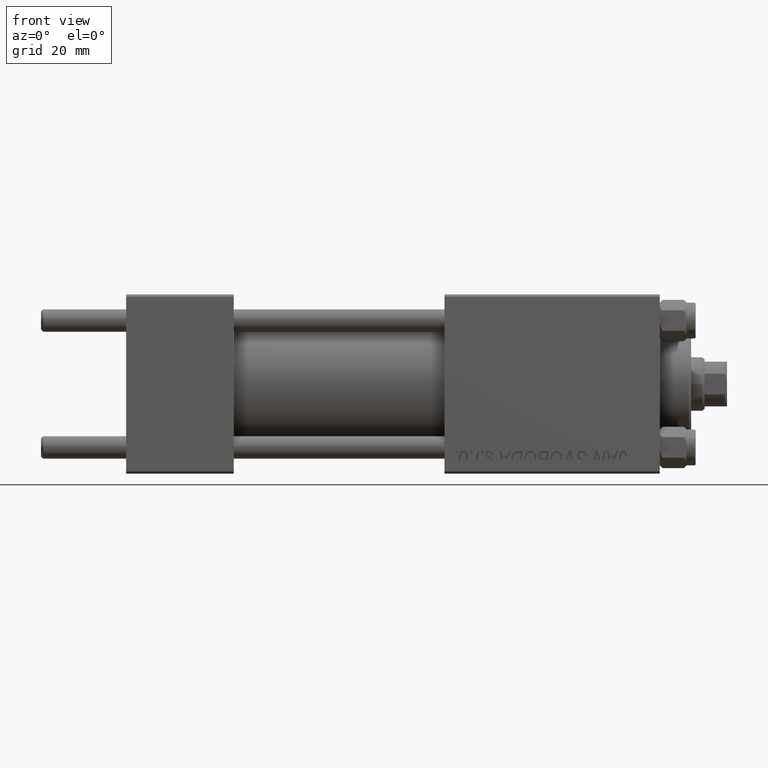
[diagram: clean part render]
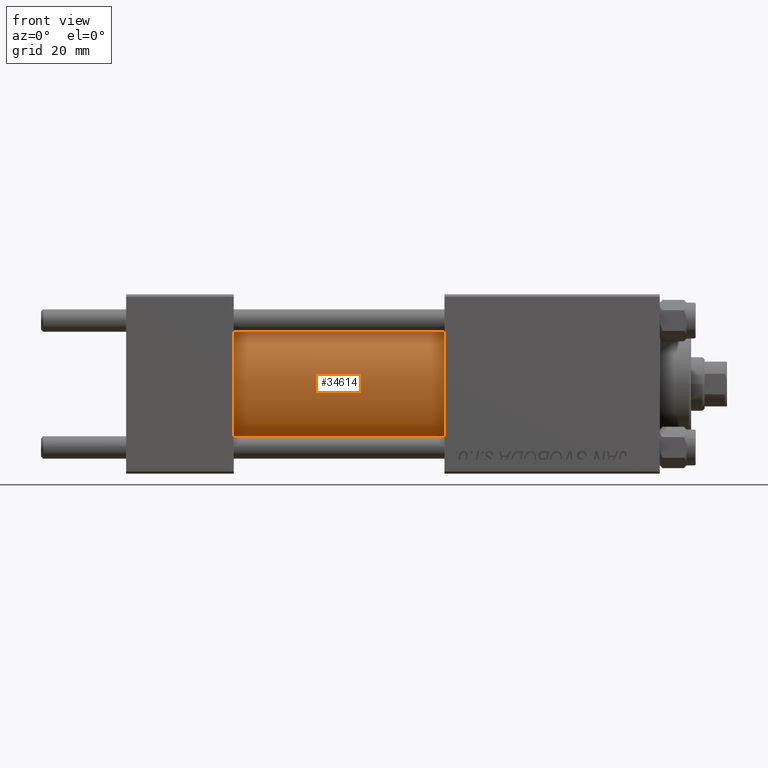
[diagram: same view with one face highlighted and labeled with its STEP entity id]
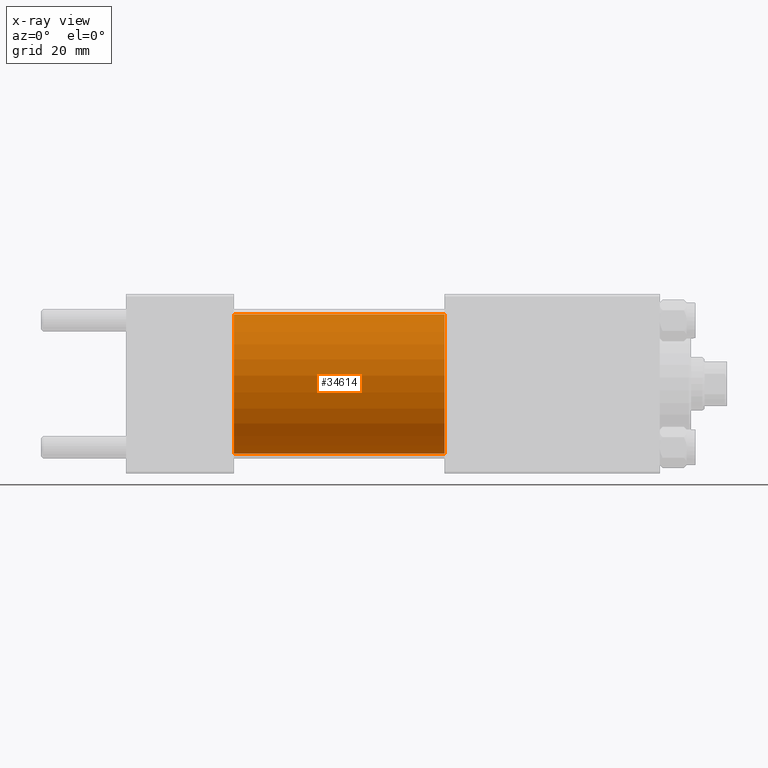
[diagram: x-ray of the same camera — body ghosted, the highlighted face saturated]
A machine part, front view. The second image highlights one B-rep face of the part: STEP entity #34614.
The next image is the same camera in x-ray: the body ghosted, the highlighted face saturated — about 0% of this face is hidden behind the body in this view.
In plain terms, the highlighted cylindrical surface (partial cylindrical patch) has radius 15.5 mm, axis along (-1, -0, -0).
Its self-contained STEP definition (entity closure, byte-faithful):
#482 = DIRECTION ( 'NONE',  ( 0.000000000000000000, 0.000000000000000000, 1.000000000000000000 ) ) ;
#2334 = DIRECTION ( 'NONE',  ( -1.000000000000000000, -0.000000000000000000, -0.000000000000000000 ) ) ;
#2903 = CARTESIAN_POINT ( 'NONE',  ( 71.00000000000001421, 0.000000000000000000, 15.50000000000000000 ) ) ;
#3385 = DIRECTION ( 'NONE',  ( 0.000000000000000000, 0.000000000000000000, -1.000000000000000000 ) ) ;
#4496 = AXIS2_PLACEMENT_3D ( 'NONE', #19610, #34965, #482 ) ;
#5984 = VERTEX_POINT ( 'NONE', #34481 ) ;
#6402 = ORIENTED_EDGE ( 'NONE', *, *, #7164, .F. ) ;
#7164 = EDGE_CURVE ( 'NONE', #9971, #5984, #19141, .T. ) ;
#8013 = FACE_OUTER_BOUND ( 'NONE', #15972, .T. ) ;
#8050 = EDGE_CURVE ( 'NONE', #9971, #21942, #37410, .T. ) ;
#8342 = AXIS2_PLACEMENT_3D ( 'NONE', #13216, #17735, #36123 ) ;
#8944 = ORIENTED_EDGE ( 'NONE', *, *, #12431, .F. ) ;
#9971 = VERTEX_POINT ( 'NONE', #14551 ) ;
#10942 = CARTESIAN_POINT ( 'NONE',  ( 71.00000000000001421, 0.000000000000000000, 0.000000000000000000 ) ) ;
#11112 = VECTOR ( 'NONE', #48985, 1000.000000000000000 ) ;
#12431 = EDGE_CURVE ( 'NONE', #5984, #26074, #36836, .T. ) ;
#12561 = ORIENTED_EDGE ( 'NONE', *, *, #25822, .T. ) ;
#13216 = CARTESIAN_POINT ( 'NONE',  ( 24.00000000000000000, 0.000000000000000000, 0.000000000000000000 ) ) ;
#14551 = CARTESIAN_POINT ( 'NONE',  ( 71.00000000000001421, 0.000000000000000000, 15.50000000000000000 ) ) ;
#15972 = EDGE_LOOP ( 'NONE', ( #8944, #6402, #44284, #12561 ) ) ;
#17735 = DIRECTION ( 'NONE',  ( 1.000000000000000000, 0.000000000000000000, 0.000000000000000000 ) ) ;
#19141 = CIRCLE ( 'NONE', #19931, 15.50000000000000000 ) ;
#19610 = CARTESIAN_POINT ( 'NONE',  ( 71.00000000000001421, 0.000000000000000000, 0.000000000000000000 ) ) ;
#19931 = AXIS2_PLACEMENT_3D ( 'NONE', #10942, #37892, #3385 ) ;
#21942 = VERTEX_POINT ( 'NONE', #40927 ) ;
#23381 = CYLINDRICAL_SURFACE ( 'NONE', #4496, 15.50000000000000000 ) ;
#25254 = CARTESIAN_POINT ( 'NONE',  ( 71.00000000000001421, 1.898202538678397557E-15, -15.50000000000000000 ) ) ;
#25705 = VECTOR ( 'NONE', #2334, 1000.000000000000000 ) ;
#25822 = EDGE_CURVE ( 'NONE', #21942, #26074, #28450, .T. ) ;
#26074 = VERTEX_POINT ( 'NONE', #36308 ) ;
#28450 = CIRCLE ( 'NONE', #8342, 15.50000000000000000 ) ;
#34481 = CARTESIAN_POINT ( 'NONE',  ( 71.00000000000001421, 1.898202538678397557E-15, -15.50000000000000000 ) ) ;
#34614 = ADVANCED_FACE ( 'NONE', ( #8013 ), #23381, .T. ) ;
#34965 = DIRECTION ( 'NONE',  ( -1.000000000000000000, -0.000000000000000000, -0.000000000000000000 ) ) ;
#36123 = DIRECTION ( 'NONE',  ( 0.000000000000000000, 0.000000000000000000, 1.000000000000000000 ) ) ;
#36308 = CARTESIAN_POINT ( 'NONE',  ( 24.00000000000000000, 1.898202538678397557E-15, -15.50000000000000000 ) ) ;
#36836 = LINE ( 'NONE', #25254, #25705 ) ;
#37410 = LINE ( 'NONE', #2903, #11112 ) ;
#37892 = DIRECTION ( 'NONE',  ( 1.000000000000000000, 0.000000000000000000, 0.000000000000000000 ) ) ;
#40927 = CARTESIAN_POINT ( 'NONE',  ( 24.00000000000000000, 0.000000000000000000, 15.50000000000000000 ) ) ;
#44284 = ORIENTED_EDGE ( 'NONE', *, *, #8050, .T. ) ;
#48985 = DIRECTION ( 'NONE',  ( -1.000000000000000000, -0.000000000000000000, -0.000000000000000000 ) ) ;